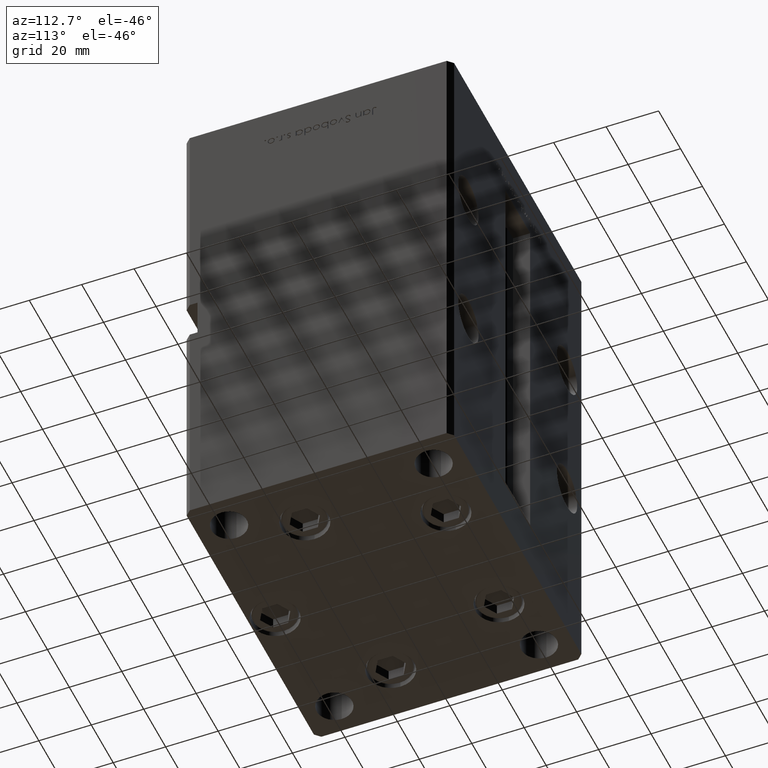
[diagram: clean part render]
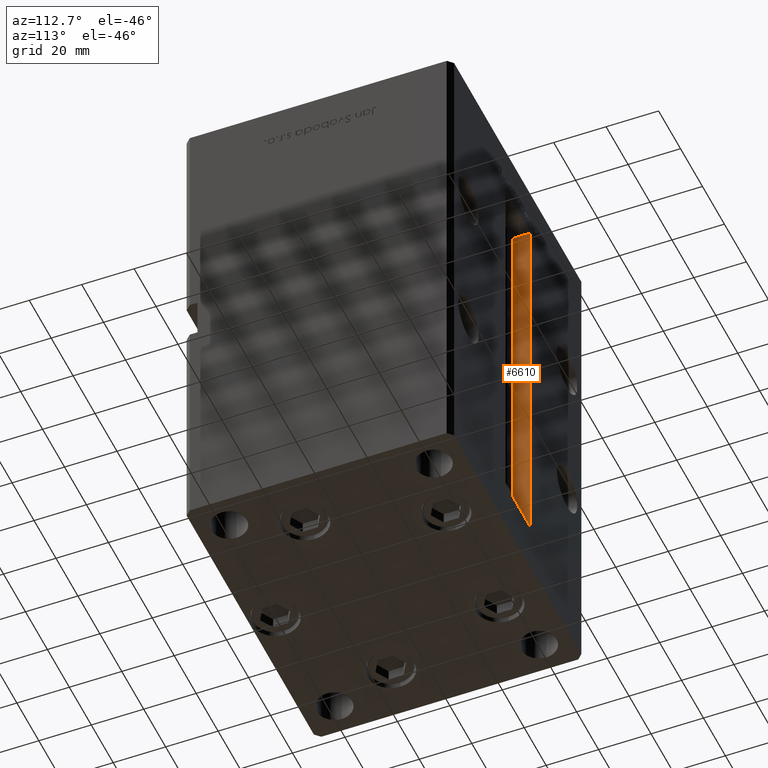
[diagram: same view with one face highlighted and labeled with its STEP entity id]
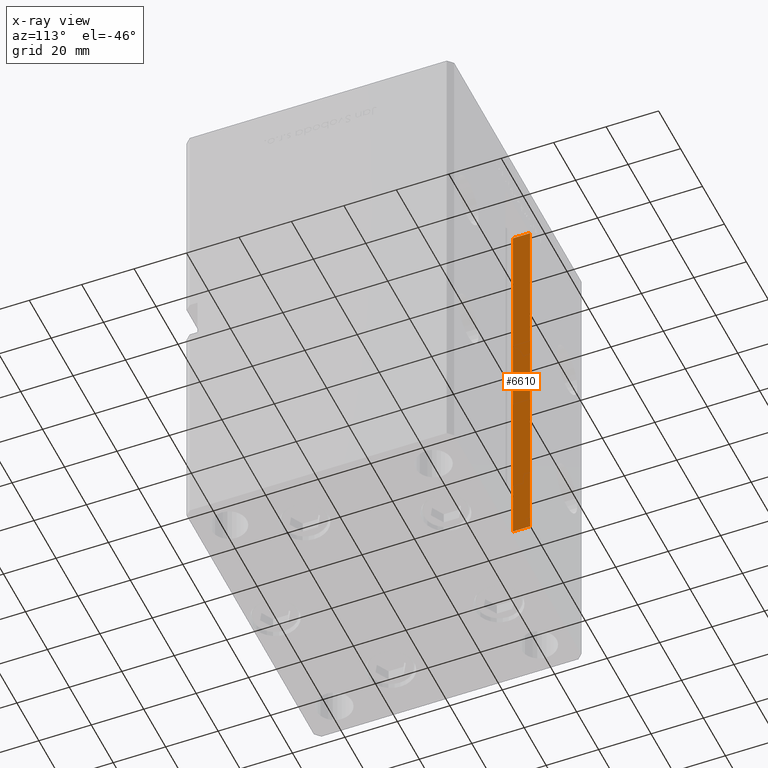
[diagram: x-ray of the same camera — body ghosted, the highlighted face saturated]
A machine part, auxiliary view. The second image highlights one B-rep face of the part: STEP entity #6610.
The next image is the same camera in x-ray: the body ghosted, the highlighted face saturated — about 0% of this face is hidden behind the body in this view.
In plain terms, the highlighted planar face has unit normal (-1, 0, 0).
Its self-contained STEP definition (entity closure, byte-faithful):
#1945 = EDGE_CURVE ( 'NONE', #10395, #32783, #3967, .T. ) ;
#2647 = VERTEX_POINT ( 'NONE', #13461 ) ;
#2654 = DIRECTION ( 'NONE',  ( -1.000000000000000000, 0.000000000000000000, 0.000000000000000000 ) ) ;
#3705 = CARTESIAN_POINT ( 'NONE',  ( -11.24999999999999822, 51.00000000000000711, 0.000000000000000000 ) ) ;
#3853 = CARTESIAN_POINT ( 'NONE',  ( -11.24999999999999822, 0.000000000000000000, 148.5000000000000000 ) ) ;
#3967 = LINE ( 'NONE', #3705, #45254 ) ;
#4689 = LINE ( 'NONE', #35916, #15618 ) ;
#6197 = VECTOR ( 'NONE', #45682, 1000.000000000000000 ) ;
#6610 = ADVANCED_FACE ( 'NONE', ( #39689 ), #48800, .F. ) ;
#6836 = ORIENTED_EDGE ( 'NONE', *, *, #45784, .F. ) ;
#7452 = DIRECTION ( 'NONE',  ( 0.000000000000000000, 0.000000000000000000, 1.000000000000000000 ) ) ;
#9451 = DIRECTION ( 'NONE',  ( -0.000000000000000000, -1.000000000000000000, -0.000000000000000000 ) ) ;
#10395 = VERTEX_POINT ( 'NONE', #14632 ) ;
#12743 = DIRECTION ( 'NONE',  ( -0.000000000000000000, -0.000000000000000000, 1.000000000000000000 ) ) ;
#12896 = EDGE_LOOP ( 'NONE', ( #6836, #34384, #51228, #34351 ) ) ;
#13461 = CARTESIAN_POINT ( 'NONE',  ( -11.24999999999999822, 44.50000000000000711, 148.5000000000000000 ) ) ;
#13758 = CARTESIAN_POINT ( 'NONE',  ( -11.24999999999999822, 44.50000000000000711, 0.000000000000000000 ) ) ;
#14056 = VECTOR ( 'NONE', #9451, 1000.000000000000000 ) ;
#14632 = CARTESIAN_POINT ( 'NONE',  ( -11.24999999999999822, 51.00000000000000711, 0.000000000000000000 ) ) ;
#14946 = CARTESIAN_POINT ( 'NONE',  ( -11.24999999999999822, 51.00000000000000711, 148.5000000000000000 ) ) ;
#15618 = VECTOR ( 'NONE', #12743, 1000.000000000000000 ) ;
#16547 = VERTEX_POINT ( 'NONE', #37527 ) ;
#23852 = DIRECTION ( 'NONE',  ( -0.000000000000000000, -0.000000000000000000, 1.000000000000000000 ) ) ;
#25332 = LINE ( 'NONE', #3853, #6197 ) ;
#27880 = CARTESIAN_POINT ( 'NONE',  ( -11.24999999999999822, 44.50000000000000711, 0.000000000000000000 ) ) ;
#32783 = VERTEX_POINT ( 'NONE', #14946 ) ;
#34279 = AXIS2_PLACEMENT_3D ( 'NONE', #27880, #2654, #7452 ) ;
#34351 = ORIENTED_EDGE ( 'NONE', *, *, #45977, .F. ) ;
#34384 = ORIENTED_EDGE ( 'NONE', *, *, #42229, .F. ) ;
#35916 = CARTESIAN_POINT ( 'NONE',  ( -11.24999999999999822, 44.50000000000000711, 0.000000000000000000 ) ) ;
#37527 = CARTESIAN_POINT ( 'NONE',  ( -11.24999999999999822, 44.50000000000000711, 0.000000000000000000 ) ) ;
#39689 = FACE_OUTER_BOUND ( 'NONE', #12896, .T. ) ;
#42229 = EDGE_CURVE ( 'NONE', #10395, #16547, #45687, .T. ) ;
#45254 = VECTOR ( 'NONE', #23852, 1000.000000000000000 ) ;
#45682 = DIRECTION ( 'NONE',  ( 0.000000000000000000, 1.000000000000000000, 0.000000000000000000 ) ) ;
#45687 = LINE ( 'NONE', #13758, #14056 ) ;
#45784 = EDGE_CURVE ( 'NONE', #16547, #2647, #4689, .T. ) ;
#45977 = EDGE_CURVE ( 'NONE', #2647, #32783, #25332, .T. ) ;
#48800 = PLANE ( 'NONE',  #34279 ) ;
#51228 = ORIENTED_EDGE ( 'NONE', *, *, #1945, .T. ) ;